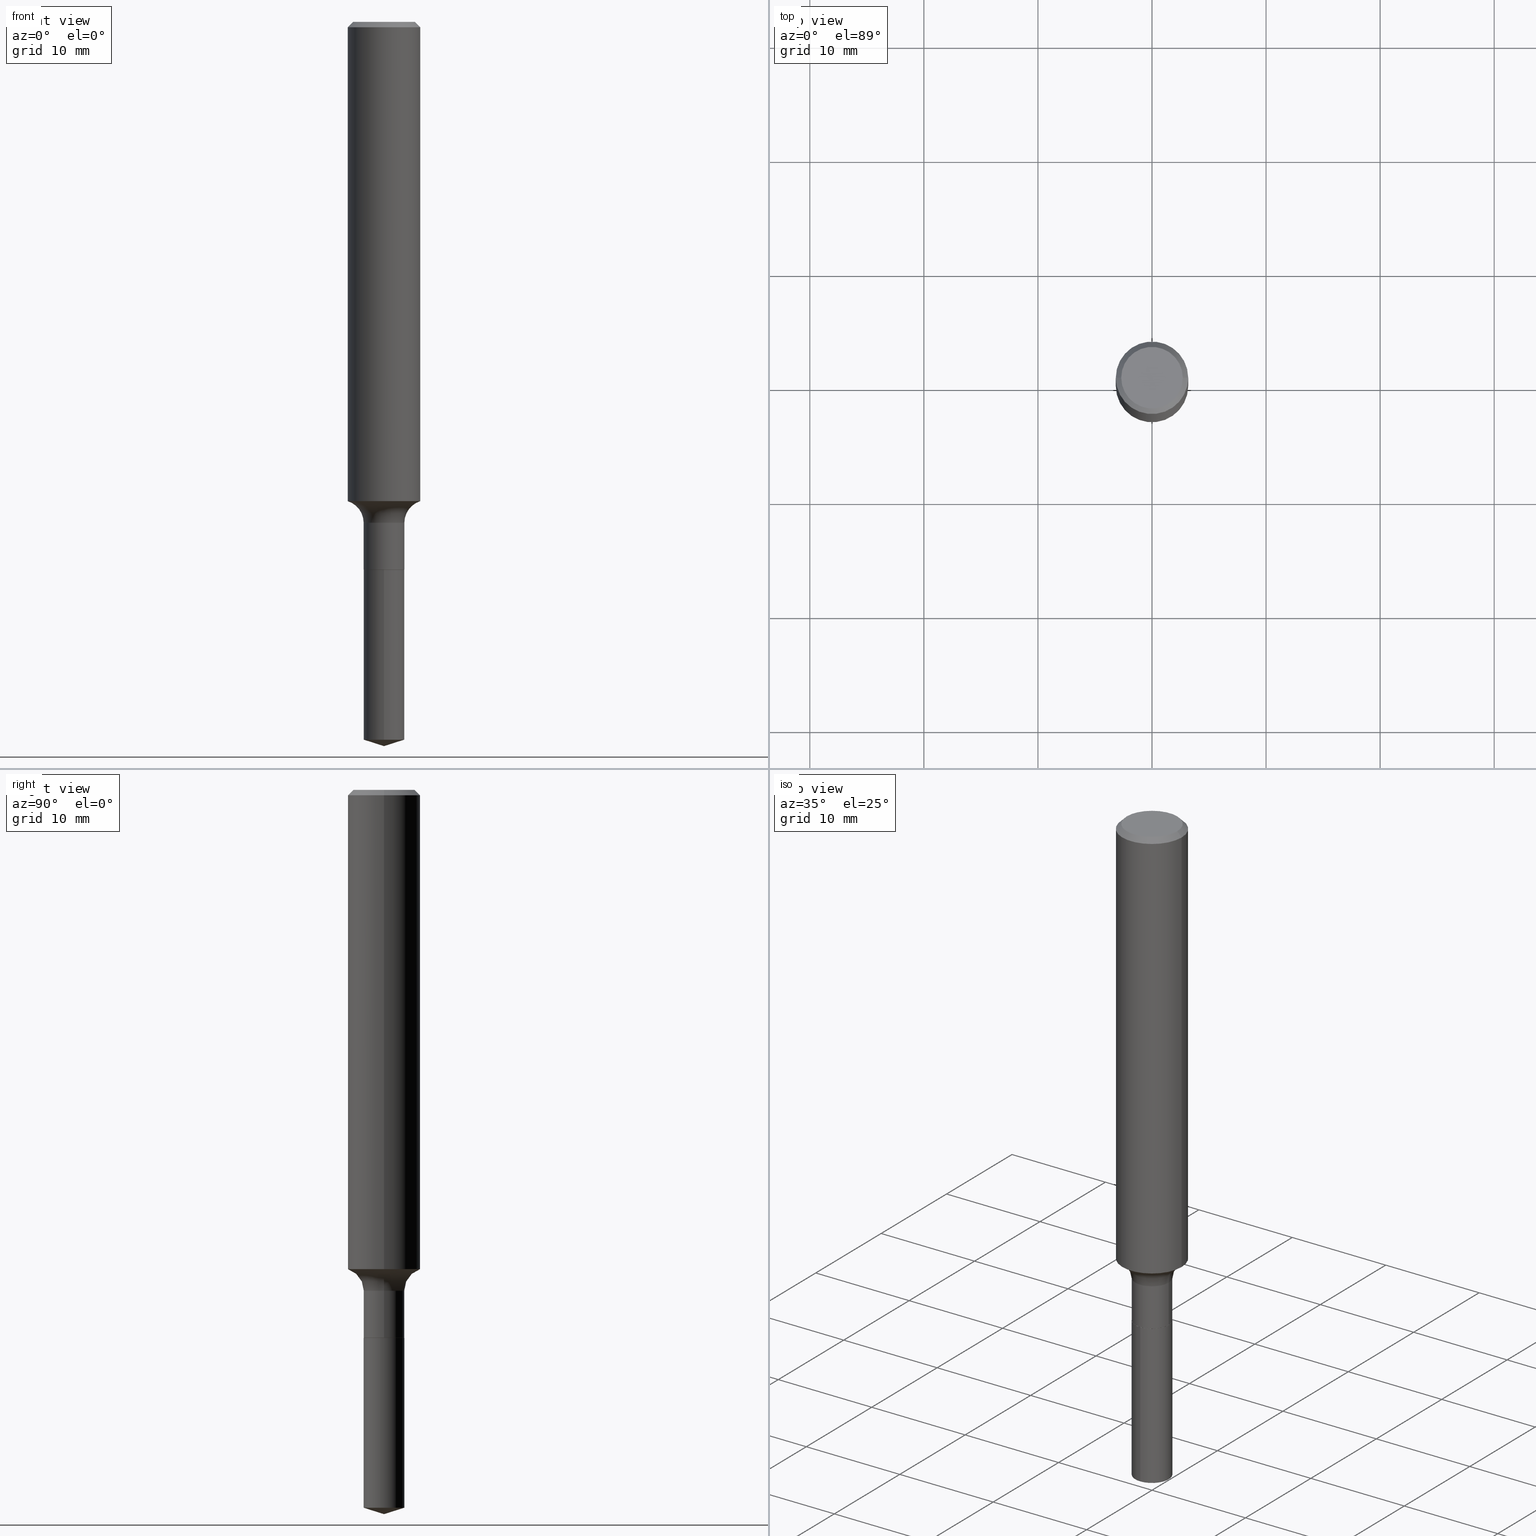
[diagram: canonical four-view strip — front | top / right | iso, engineering-drawing reading convention]
A machine part, canonical four-view strip (front | top / right | iso — engineering-drawing reading convention). The complete STEP part file that produces these views, byte-faithful:
ISO-10303-21;
HEADER;
FILE_DESCRIPTION (( 'STEP AP203' ),
    '1' );
FILE_NAME ('51332.STEP',
    '2024-04-19T12:48:15',
    ( '' ),
    ( '' ),
    'SwSTEP 2.0',
    'SolidWorks 2023',
    '' );
FILE_SCHEMA (( 'CONFIG_CONTROL_DESIGN' ));
ENDSEC;

DATA;
#1 = ORIENTED_EDGE ( 'NONE', *, *, #132, .T. ) ;
#2 = DIRECTION ( 'NONE',  ( 1.000000000000000000, -6.982962677686266711E-15, 4.876176775795935232E-29 ) ) ;
#3 = CARTESIAN_POINT ( 'NONE',  ( 4.623403324973620023E-29, -6.600994619216851985E-15, -1.890600000000000280 ) ) ;
#4 = VERTEX_POINT ( 'NONE', #352 ) ;
#5 = EDGE_CURVE ( 'NONE', #480, #422, #19, .T. ) ;
#6 = DIRECTION ( 'NONE',  ( -6.982962677686265133E-15, -1.000000000000000000, 3.885985766236505386E-15 ) ) ;
#7 = VERTEX_POINT ( 'NONE', #299 ) ;
#8 = CONICAL_SURFACE ( 'NONE', #289, 0.06980000000000000093, 0.7853981633975507526 ) ;
#9 = FACE_OUTER_BOUND ( 'NONE', #320, .T. ) ;
#10 = ORIENTED_EDGE ( 'NONE', *, *, #5, .F. ) ;
#11 = EDGE_CURVE ( 'NONE', #13, #136, #66, .T. ) ;
#12 = CARTESIAN_POINT ( 'NONE',  ( -0.07030000000000000138, -5.818323939397324002E-15, -1.890100000000000335 ) ) ;
#13 = VERTEX_POINT ( 'NONE', #65 ) ;
#14 = DIRECTION ( 'NONE',  ( -2.446110727934512128E-29, 3.490562070362123134E-15, 1.000000000000000000 ) ) ;
#15 = ORIENTED_EDGE ( 'NONE', *, *, #25, .F. ) ;
#16 = MANIFOLD_SOLID_BREP ( 'Body-Move/Copy2[2]', #391 ) ;
#17 = AXIS2_PLACEMENT_3D ( 'NONE', #288, #364, #491 ) ;
#18 = DIRECTION ( 'NONE',  ( 2.446110727934511567E-29, -3.490562070362123134E-15, -1.000000000000000000 ) ) ;
#19 = CIRCLE ( 'NONE', #17, 0.1062499999999999972 ) ;
#20 = VECTOR ( 'NONE', #186, 39.37007874015748143 ) ;
#21 = EDGE_LOOP ( 'NONE', ( #125, #430, #233, #15 ) ) ;
#22 = ORIENTED_EDGE ( 'NONE', *, *, #132, .F. ) ;
#23 = MANIFOLD_SOLID_BREP ( 'Body-Move/Copy2[1]', #205 ) ;
#24 = EDGE_CURVE ( 'NONE', #432, #396, #296, .T. ) ;
#25 = EDGE_CURVE ( 'NONE', #171, #136, #375, .T. ) ;
#26 = DATE_TIME_ROLE ( 'classification_date' ) ;
#27 = FACE_OUTER_BOUND ( 'NONE', #310, .T. ) ;
#28 = DATE_AND_TIME ( #181, #452 ) ;
#29 = CARTESIAN_POINT ( 'NONE',  ( 0.000000000000000000, 0.000000000000000000, 0.000000000000000000 ) ) ;
#30 = AXIS2_PLACEMENT_3D ( 'NONE', #178, #489, #147 ) ;
#31 = CC_DESIGN_SECURITY_CLASSIFICATION ( #338, ( #227 ) ) ;
#32 = CALENDAR_DATE ( 2024, 19, 4 ) ;
#33 = DIRECTION ( 'NONE',  ( -2.445468806185136877E-29, 3.491481338843145188E-15, 1.000000000000000000 ) ) ;
#34 = APPROVAL_ROLE ( '' ) ;
#35 = CARTESIAN_POINT ( 'NONE',  ( 4.623403324973620023E-29, -6.600994619216851985E-15, -1.890600000000000280 ) ) ;
#36 = CARTESIAN_POINT ( 'NONE',  ( -9.018950876334876814E-28, 1.286955604126683751E-13, 36.87007874015748143 ) ) ;
#37 = DIRECTION ( 'NONE',  ( 7.105427357601001859E-15, 1.000000000000000000, -3.491481338843145583E-15 ) ) ;
#38 = ORIENTED_EDGE ( 'NONE', *, *, #175, .T. ) ;
#39 = ADVANCED_FACE ( 'NONE', ( #293 ), #253, .T. ) ;
#40 = DIRECTION ( 'NONE',  ( 1.000000000000000000, -6.982962677686266711E-15, 0.000000000000000000 ) ) ;
#41 = CC_DESIGN_DATE_AND_TIME_ASSIGNMENT ( #179, #26, ( #338 ) ) ;
#42 = DIRECTION ( 'NONE',  ( -2.445468806185136597E-29, 3.491481338843145583E-15, 1.000000000000000000 ) ) ;
#43 = ORIENTED_EDGE ( 'NONE', *, *, #24, .F. ) ;
#44 = VECTOR ( 'NONE', #263, 39.37007874015748143 ) ;
#45 = CARTESIAN_POINT ( 'NONE',  ( 4.227971019013483248E-29, -6.036422086725915643E-15, -1.728900000000000325 ) ) ;
#46 = CARTESIAN_POINT ( 'NONE',  ( 0.1250000000000001110, -8.728703347107841277E-16, 6.095220969744924646E-30 ) ) ;
#47 = ORIENTED_EDGE ( 'NONE', *, *, #250, .T. ) ;
#48 = ORIENTED_EDGE ( 'NONE', *, *, #267, .F. ) ;
#49 = VECTOR ( 'NONE', #403, 39.37007874015748143 ) ;
#50 = VECTOR ( 'NONE', #208, 39.37007874015748143 ) ;
#51 = LINE ( 'NONE', #240, #50 ) ;
#52 = ORIENTED_EDGE ( 'NONE', *, *, #161, .T. ) ;
#53 = CARTESIAN_POINT ( 'NONE',  ( 4.227971019013483248E-29, -6.036422086725915643E-15, -1.728900000000000325 ) ) ;
#54 = VERTEX_POINT ( 'NONE', #366 ) ;
#55 = CARTESIAN_POINT ( 'NONE',  ( -7.955031918821649840E-47, 1.135767727816383790E-32, 3.252968060235157457E-18 ) ) ;
#56 = ORIENTED_EDGE ( 'NONE', *, *, #324, .T. ) ;
#57 = DIRECTION ( 'NONE',  ( 1.000000000000000000, -6.982962677686266711E-15, 0.000000000000000000 ) ) ;
#58 = AXIS2_PLACEMENT_3D ( 'NONE', #122, #129, #281 ) ;
#59 = EDGE_CURVE ( 'NONE', #7, #396, #333, .T. ) ;
#60 = ORIENTED_EDGE ( 'NONE', *, *, #117, .T. ) ;
#61 = ADVANCED_FACE ( 'NONE', ( #100 ), #407, .T. ) ;
#62 = APPLICATION_CONTEXT ( 'configuration controlled 3d designs of mechanical parts and assemblies' ) ;
#63 = APPROVAL_DATE_TIME ( #69, #127 ) ;
#64 = DIRECTION ( 'NONE',  ( -2.445468806185136597E-29, 3.491481338843145583E-15, 1.000000000000000000 ) ) ;
#65 = CARTESIAN_POINT ( 'NONE',  ( 0.07030000000000000138, -7.090151154788775429E-15, -1.890100000000000335 ) ) ;
#66 = LINE ( 'NONE', #335, #356 ) ;
#67 = CIRCLE ( 'NONE', #408, 0.07029999999999998750 ) ;
#68 = AXIS2_PLACEMENT_3D ( 'NONE', #53, #467, #311 ) ;
#69 = DATE_AND_TIME ( #441, #275 ) ;
#70 = DIRECTION ( 'NONE',  ( 6.776566513254265237E-15, 0.9537169507482298192, 0.3007057995042637932 ) ) ;
#71 =( NAMED_UNIT ( * ) PLANE_ANGLE_UNIT ( ) SI_UNIT ( $, .RADIAN. ) );
#72 = CARTESIAN_POINT ( 'NONE',  ( -0.06980000000000000093, -6.105035789656301457E-15, -1.890600000000000280 ) ) ;
#73 = DIRECTION ( 'NONE',  ( -2.445468806185136597E-29, 3.491481338843145583E-15, 1.000000000000000000 ) ) ;
#74 = EDGE_LOOP ( 'NONE', ( #308, #60, #134, #435 ) ) ;
#75 = AXIS2_PLACEMENT_3D ( 'NONE', #212, #106, #330 ) ;
#76 = CYLINDRICAL_SURFACE ( 'NONE', #457, 0.1250000000000001110 ) ;
#77 = LINE ( 'NONE', #78, #44 ) ;
#78 = CARTESIAN_POINT ( 'NONE',  ( 4.995115432393965888E-16, 0.07029999999999339555, -1.890600000000000502 ) ) ;
#79 = AXIS2_PLACEMENT_3D ( 'NONE', #343, #302, #114 ) ;
#80 = EDGE_CURVE ( 'NONE', #13, #315, #392, .T. ) ;
#81 = FACE_OUTER_BOUND ( 'NONE', #130, .T. ) ;
#82 = FACE_OUTER_BOUND ( 'NONE', #190, .T. ) ;
#83 = ORIENTED_EDGE ( 'NONE', *, *, #324, .F. ) ;
#84 = DIRECTION ( 'NONE',  ( -2.445468806185136597E-29, 3.491481338843145583E-15, 1.000000000000000000 ) ) ;
#85 = ORIENTED_EDGE ( 'NONE', *, *, #429, .T. ) ;
#86 = EDGE_CURVE ( 'NONE', #90, #95, #98, .T. ) ;
#87 = TOROIDAL_SURFACE ( 'NONE', #434, 0.1482999999999999596, 0.07800000000000002764 ) ;
#88 = CIRCLE ( 'NONE', #220, 0.07030000000000000138 ) ;
#89 = DIRECTION ( 'NONE',  ( -6.982962677686267499E-15, -1.000000000000000000, 3.500519750498661045E-15 ) ) ;
#90 = VERTEX_POINT ( 'NONE', #449 ) ;
#91 = LINE ( 'NONE', #164, #305 ) ;
#92 = ORIENTED_EDGE ( 'NONE', *, *, #295, .F. ) ;
#93 = EDGE_CURVE ( 'NONE', #54, #170, #225, .T. ) ;
#94 = CARTESIAN_POINT ( 'NONE',  ( 4.585254011597163874E-31, -6.546527510330944066E-17, -0.01875000000000013461 ) ) ;
#95 = VERTEX_POINT ( 'NONE', #413 ) ;
#96 = PERSON_AND_ORGANIZATION ( #237, #394 ) ;
#97 = AXIS2_PLACEMENT_3D ( 'NONE', #318, #84, #428 ) ;
#98 = LINE ( 'NONE', #372, #298 ) ;
#99 = DATE_TIME_ROLE ( 'creation_date' ) ;
#100 = FACE_OUTER_BOUND ( 'NONE', #323, .T. ) ;
#101 = PRODUCT ( '51332', '51332', '', ( #290 ) ) ;
#102 = CALENDAR_DATE ( 2024, 19, 4 ) ;
#103 = DIMENSIONAL_EXPONENTS ( 1.000000000000000000, 0.000000000000000000, 0.000000000000000000, 0.000000000000000000, 0.000000000000000000, 0.000000000000000000, 0.000000000000000000 ) ;
#104 = DIRECTION ( 'NONE',  ( -2.445468806185136597E-29, 3.491481338843145583E-15, 1.000000000000000000 ) ) ;
#105 = APPROVAL_STATUS ( 'not_yet_approved' ) ;
#106 = DIRECTION ( 'NONE',  ( -2.445468806185136597E-29, 3.491481338843145583E-15, 1.000000000000000000 ) ) ;
#107 = CONICAL_SURFACE ( 'NONE', #450, 0.1250000000000000000, 0.7853981633974447263 ) ;
#108 = APPROVAL_DATE_TIME ( #28, #409 ) ;
#109 = LINE ( 'NONE', #72, #49 ) ;
#110 = EDGE_CURVE ( 'NONE', #4, #194, #206, .T. ) ;
#111 = FACE_OUTER_BOUND ( 'NONE', #419, .T. ) ;
#112 = DIRECTION ( 'NONE',  ( 1.000000000000000000, -6.982962677686271444E-15, 0.000000000000000000 ) ) ;
#113 = CIRCLE ( 'NONE', #79, 0.07030000000000000138 ) ;
#114 = DIRECTION ( 'NONE',  ( -6.982962677686265133E-15, -1.000000000000000000, 0.000000000000000000 ) ) ;
#115 = DIRECTION ( 'NONE',  ( 1.000000000000000000, -6.982962677686265133E-15, 4.883557194083112340E-29 ) ) ;
#116 = ORIENTED_EDGE ( 'NONE', *, *, #24, .T. ) ;
#117 = EDGE_CURVE ( 'NONE', #194, #315, #109, .T. ) ;
#118 = EDGE_CURVE ( 'NONE', #171, #427, #191, .T. ) ;
#119 = DIRECTION ( 'NONE',  ( -2.445468806185136597E-29, 3.491481338843145583E-15, 1.000000000000000000 ) ) ;
#120 = VECTOR ( 'NONE', #158, 39.37007874015748143 ) ;
#121 = LOCAL_TIME ( 8, 48, 15.00000000000000000, #412 ) ;
#122 = CARTESIAN_POINT ( 'NONE',  ( 4.623403324973620023E-29, -6.600994619216851985E-15, -1.890600000000000280 ) ) ;
#123 =( LENGTH_UNIT ( ) NAMED_UNIT ( * ) SI_UNIT ( $, .METRE. ) );
#124 = ADVANCED_FACE ( 'NONE', ( #142 ), #321, .T. ) ;
#125 = ORIENTED_EDGE ( 'NONE', *, *, #357, .F. ) ;
#126 = CARTESIAN_POINT ( 'NONE',  ( 4.623403324973620023E-29, -6.600994619216851985E-15, -1.890600000000000280 ) ) ;
#127 = APPROVAL ( #145, 'UNSPECIFIED' ) ;
#128 = ORIENTED_EDGE ( 'NONE', *, *, #174, .T. ) ;
#129 = DIRECTION ( 'NONE',  ( -2.438088387897960049E-29, 3.491481338843145188E-15, 1.000000000000000000 ) ) ;
#130 = EDGE_LOOP ( 'NONE', ( #83, #440, #437, #239 ) ) ;
#131 = ADVANCED_FACE ( 'NONE', ( #27 ), #173, .T. ) ;
#132 = EDGE_CURVE ( 'NONE', #315, #13, #234, .T. ) ;
#133 = CARTESIAN_POINT ( 'NONE',  ( 4.995115432394111827E-16, 0.07029999999999340943, -1.890600000000000502 ) ) ;
#134 = ORIENTED_EDGE ( 'NONE', *, *, #80, .F. ) ;
#135 = COORDINATED_UNIVERSAL_TIME_OFFSET ( 5, 0, .BEHIND. ) ;
#136 = VERTEX_POINT ( 'NONE', #221 ) ;
#137 = PERSON_AND_ORGANIZATION_ROLE ( 'creator' ) ;
#138 = VECTOR ( 'NONE', #418, 39.37007874015748143 ) ;
#139 = CIRCLE ( 'NONE', #97, 0.1250000000000001943 ) ;
#140 = DIRECTION ( 'NONE',  ( -2.445468806185136597E-29, 3.491481338843145583E-15, 1.000000000000000000 ) ) ;
#141 = CARTESIAN_POINT ( 'NONE',  ( 0.000000000000000000, 0.000000000000000000, 0.000000000000000000 ) ) ;
#142 = FACE_OUTER_BOUND ( 'NONE', #248, .T. ) ;
#143 = DIRECTION ( 'NONE',  ( -2.445468806185136597E-29, 3.491481338843145583E-15, 1.000000000000000000 ) ) ;
#144 = PRODUCT_RELATED_PRODUCT_CATEGORY ( 'detail', '', ( #101 ) ) ;
#145 = APPROVAL_STATUS ( 'not_yet_approved' ) ;
#146 = CONICAL_SURFACE ( 'NONE', #312, 0.1250000000000000000, 0.7853981633974447263 ) ;
#147 = DIRECTION ( 'NONE',  ( 1.000000000000000000, -6.982962677686266711E-15, 4.876176775795935793E-29 ) ) ;
#148 = CONICAL_SURFACE ( 'NONE', #185, 124.8659371009166108, 1.265363707695895235 ) ;
#149 = EDGE_CURVE ( 'NONE', #427, #54, #370, .T. ) ;
#150 = CARTESIAN_POINT ( 'NONE',  ( 4.585254011597163874E-31, -6.546527510330944066E-17, -0.01875000000000013461 ) ) ;
#151 = CARTESIAN_POINT ( 'NONE',  ( 0.06980000000000000093, -7.088405414119353136E-15, -1.890600000000000280 ) ) ;
#152 = ORIENTED_EDGE ( 'NONE', *, *, #86, .T. ) ;
#153 = DIRECTION ( 'NONE',  ( -2.445468806185136597E-29, 3.491481338843145583E-15, 1.000000000000000000 ) ) ;
#154 = ORIENTED_EDGE ( 'NONE', *, *, #295, .T. ) ;
#155 = VECTOR ( 'NONE', #33, 39.37007874015748143 ) ;
#156 = FACE_OUTER_BOUND ( 'NONE', #243, .T. ) ;
#157 = ORIENTED_EDGE ( 'NONE', *, *, #59, .F. ) ;
#158 = DIRECTION ( 'NONE',  ( -2.445468806185136877E-29, 3.491481338843145188E-15, 1.000000000000000000 ) ) ;
#159 = FACE_OUTER_BOUND ( 'NONE', #284, .T. ) ;
#160 = CC_DESIGN_APPROVAL ( #209, ( #338 ) ) ;
#161 = EDGE_CURVE ( 'NONE', #4, #13, #304, .T. ) ;
#162 = ADVANCED_FACE ( 'NONE', ( #192 ), #484, .T. ) ;
#163 = ORIENTED_EDGE ( 'NONE', *, *, #373, .T. ) ;
#164 = CARTESIAN_POINT ( 'NONE',  ( 0.1250000000000000000, -9.230275248247509846E-16, -0.01875000000000013461 ) ) ;
#165 = ORIENTED_EDGE ( 'NONE', *, *, #357, .T. ) ;
#166 = PLANE ( 'NONE',  #168 ) ;
#167 = ORIENTED_EDGE ( 'NONE', *, *, #183, .F. ) ;
#168 = AXIS2_PLACEMENT_3D ( 'NONE', #283, #18, #351 ) ;
#169 = DIRECTION ( 'NONE',  ( -2.445468806185136597E-29, 3.491481338843145583E-15, 1.000000000000000000 ) ) ;
#170 = VERTEX_POINT ( 'NONE', #266 ) ;
#171 = VERTEX_POINT ( 'NONE', #272 ) ;
#172 = PERSON_AND_ORGANIZATION ( #237, #394 ) ;
#173 = CYLINDRICAL_SURFACE ( 'NONE', #265, 0.1250000000000001110 ) ;
#174 = EDGE_CURVE ( 'NONE', #7, #95, #113, .T. ) ;
#175 = EDGE_CURVE ( 'NONE', #194, #4, #348, .T. ) ;
#176 = AXIS2_PLACEMENT_3D ( 'NONE', #189, #270, #112 ) ;
#177 =( GEOMETRIC_REPRESENTATION_CONTEXT ( 3 ) GLOBAL_UNCERTAINTY_ASSIGNED_CONTEXT ( ( #217 ) ) GLOBAL_UNIT_ASSIGNED_CONTEXT ( ( #431, #71, #214 ) ) REPRESENTATION_CONTEXT ( 'NONE', 'WORKASPACE' ) );
#178 = CARTESIAN_POINT ( 'NONE',  ( 0.000000000000000000, 0.000000000000000000, 0.000000000000000000 ) ) ;
#179 = DATE_AND_TIME ( #32, #121 ) ;
#180 = CARTESIAN_POINT ( 'NONE',  ( 4.622180590570527221E-29, -6.599248878547431270E-15, -1.890100000000000335 ) ) ;
#181 = CALENDAR_DATE ( 2024, 19, 4 ) ;
#182 = DIRECTION ( 'NONE',  ( 1.000000000000000000, -6.982962677686271444E-15, 0.000000000000000000 ) ) ;
#183 = EDGE_CURVE ( 'NONE', #422, #54, #455, .T. ) ;
#184 = DIRECTION ( 'NONE',  ( -6.982962677686267499E-15, -1.000000000000000000, 3.500519750498661045E-15 ) ) ;
#185 = AXIS2_PLACEMENT_3D ( 'NONE', #397, #355, #89 ) ;
#186 = DIRECTION ( 'NONE',  ( 0.7071067811866199593, -2.468850131083015945E-15, 0.7071067811864750752 ) ) ;
#187 = ORIENTED_EDGE ( 'NONE', *, *, #460, .F. ) ;
#188 = ADVANCED_FACE ( 'NONE', ( #387 ), #76, .T. ) ;
#189 = CARTESIAN_POINT ( 'NONE',  ( 4.623403324973620023E-29, -6.600994619216851985E-15, -1.890600000000000280 ) ) ;
#190 = EDGE_LOOP ( 'NONE', ( #317, #456 ) ) ;
#191 = CIRCLE ( 'NONE', #328, 0.1250000000000001943 ) ;
#192 = FACE_OUTER_BOUND ( 'NONE', #74, .T. ) ;
#193 = FACE_OUTER_BOUND ( 'NONE', #325, .T. ) ;
#194 = VERTEX_POINT ( 'NONE', #229 ) ;
#195 = ADVANCED_FACE ( 'NONE', ( #156 ), #87, .F. ) ;
#196 = ADVANCED_FACE ( 'NONE', ( #421 ), #416, .F. ) ;
#197 = ORIENTED_EDGE ( 'NONE', *, *, #236, .F. ) ;
#198 = AXIS2_PLACEMENT_3D ( 'NONE', #279, #472, #6 ) ;
#199 = DIRECTION ( 'NONE',  ( 2.438088387897960049E-29, -3.491481338843145188E-15, -1.000000000000000000 ) ) ;
#200 = ORIENTED_EDGE ( 'NONE', *, *, #25, .T. ) ;
#201 = CARTESIAN_POINT ( 'NONE',  ( -4.909022762412983059E-16, -0.07030000000000659333, -1.890600000000000058 ) ) ;
#202 = ORIENTED_EDGE ( 'NONE', *, *, #250, .F. ) ;
#203 = CARTESIAN_POINT ( 'NONE',  ( 0.1062499999999999972, -8.259777185439879685E-16, 6.505936120475796882E-18 ) ) ;
#204 = ORIENTED_EDGE ( 'NONE', *, *, #117, .F. ) ;
#205 = CLOSED_SHELL ( 'NONE', ( #244, #124, #374, #381, #301 ) ) ;
#206 = CIRCLE ( 'NONE', #367, 0.06980000000000000093 ) ;
#207 = AXIS2_PLACEMENT_3D ( 'NONE', #141, #292, #448 ) ;
#208 = DIRECTION ( 'NONE',  ( -2.445468806185136877E-29, 3.491481338843145188E-15, 1.000000000000000000 ) ) ;
#209 = APPROVAL ( #329, 'UNSPECIFIED' ) ;
#210 = ORIENTED_EDGE ( 'NONE', *, *, #11, .F. ) ;
#211 = SECURITY_CLASSIFICATION_LEVEL ( 'unclassified' ) ;
#212 = CARTESIAN_POINT ( 'NONE',  ( 4.585254011597163874E-31, -6.546527510330944066E-17, -0.01875000000000013461 ) ) ;
#213 = EDGE_CURVE ( 'NONE', #95, #432, #77, .T. ) ;
#214 =( NAMED_UNIT ( * ) SI_UNIT ( $, .STERADIAN. ) SOLID_ANGLE_UNIT ( ) );
#215 = DIRECTION ( 'NONE',  ( 1.000000000000000000, -6.982962677686268288E-15, 0.000000000000000000 ) ) ;
#216 = CC_DESIGN_DATE_AND_TIME_ASSIGNMENT ( #252, #99, ( #336 ) ) ;
#217 = UNCERTAINTY_MEASURE_WITH_UNIT (LENGTH_MEASURE( 1.000000000000000082E-05 ), #431, 'distance_accuracy_value', 'NONE');
#218 = APPROVAL_ROLE ( '' ) ;
#219 = AXIS2_PLACEMENT_3D ( 'NONE', #378, #119, #492 ) ;
#220 = AXIS2_PLACEMENT_3D ( 'NONE', #322, #14, #433 ) ;
#221 = CARTESIAN_POINT ( 'NONE',  ( 0.07029999999999998750, -6.527324362967259801E-15, -1.728900000000000325 ) ) ;
#222 = PERSON_AND_ORGANIZATION ( #237, #394 ) ;
#223 = CARTESIAN_POINT ( 'NONE',  ( -0.1250000000000001110, 8.881784197001260212E-16, -6.148668862818637832E-30 ) ) ;
#224 = CARTESIAN_POINT ( 'NONE',  ( 4.045933665398783459E-29, -5.776520990661802291E-15, -1.654461367556892881 ) ) ;
#225 = CIRCLE ( 'NONE', #75, 0.1250000000000000000 ) ;
#226 = DIRECTION ( 'NONE',  ( -6.982962677686265133E-15, -1.000000000000000000, 3.885985766236505386E-15 ) ) ;
#227 = PRODUCT_DEFINITION_FORMATION_WITH_SPECIFIED_SOURCE ( 'ANY', '', #101, .NOT_KNOWN. ) ;
#228 = ORIENTED_EDGE ( 'NONE', *, *, #175, .F. ) ;
#229 = CARTESIAN_POINT ( 'NONE',  ( -0.06980000000000000093, -6.102386562482190256E-15, -1.890600000000000280 ) ) ;
#230 = EDGE_CURVE ( 'NONE', #422, #480, #376, .T. ) ;
#231 = CARTESIAN_POINT ( 'NONE',  ( 0.000000000000000000, 0.000000000000000000, 0.000000000000000000 ) ) ;
#232 = CARTESIAN_POINT ( 'NONE',  ( 4.227971019013483248E-29, -6.036422086725915643E-15, -1.728900000000000325 ) ) ;
#233 = ORIENTED_EDGE ( 'NONE', *, *, #236, .T. ) ;
#234 = CIRCLE ( 'NONE', #382, 0.07030000000000000138 ) ;
#235 = CARTESIAN_POINT ( 'NONE',  ( -0.07029999999999998750, -5.818323939397324002E-15, -1.728900000000000325 ) ) ;
#236 = EDGE_CURVE ( 'NONE', #280, #136, #67, .T. ) ;
#237 = PERSON ( 'UNSPECIFIED', 'UNSPECIFIED', 'UNSPECIFIED', ('UNSPECIFIED'), ('UNSPECIFIED'), ('UNSPECIFIED') ) ;
#238 = PLANE ( 'NONE',  #424 ) ;
#239 = ORIENTED_EDGE ( 'NONE', *, *, #93, .T. ) ;
#240 = CARTESIAN_POINT ( 'NONE',  ( -0.07029999999999998750, 4.995115432393503418E-16, -3.458011368449198169E-30 ) ) ;
#241 = ORIENTED_EDGE ( 'NONE', *, *, #86, .F. ) ;
#242 = DIRECTION ( 'NONE',  ( -2.446110727934512128E-29, 3.490562070362123134E-15, 1.000000000000000000 ) ) ;
#243 = EDGE_LOOP ( 'NONE', ( #48, #246, #200, #85 ) ) ;
#244 = ADVANCED_FACE ( 'NONE', ( #344 ), #414, .T. ) ;
#245 = DIRECTION ( 'NONE',  ( -6.659769872151639188E-15, -0.9537169507482275987, 0.3007057995042703991 ) ) ;
#246 = ORIENTED_EDGE ( 'NONE', *, *, #118, .F. ) ;
#247 = CYLINDRICAL_SURFACE ( 'NONE', #475, 0.07030000000000000138 ) ;
#248 = EDGE_LOOP ( 'NONE', ( #471, #152, #474 ) ) ;
#249 = PERSON_AND_ORGANIZATION ( #237, #394 ) ;
#250 = EDGE_CURVE ( 'NONE', #171, #170, #269, .T. ) ;
#251 = DIRECTION ( 'NONE',  ( 1.000000000000000000, -6.982962677686266711E-15, 4.876176775795935793E-29 ) ) ;
#252 = DATE_AND_TIME ( #334, #417 ) ;
#253 = CYLINDRICAL_SURFACE ( 'NONE', #30, 0.07029999999999998750 ) ;
#254 = CC_DESIGN_PERSON_AND_ORGANIZATION_ASSIGNMENT ( #479, #137, ( #336 ) ) ;
#255 = DATE_AND_TIME ( #102, #368 ) ;
#256 = DIRECTION ( 'NONE',  ( -2.445468806185136877E-29, 3.491481338843145188E-15, 1.000000000000000000 ) ) ;
#257 = APPROVAL_ROLE ( '' ) ;
#258 = AXIS2_PLACEMENT_3D ( 'NONE', #232, #383, #454 ) ;
#259 = CC_DESIGN_APPROVAL ( #409, ( #336 ) ) ;
#260 = DIRECTION ( 'NONE',  ( 1.000000000000000000, -6.982962677686267499E-15, 0.000000000000000000 ) ) ;
#261 = PERSON_AND_ORGANIZATION_ROLE ( 'classification_officer' ) ;
#262 = DIRECTION ( 'NONE',  ( -2.446110727934511847E-29, 3.490562070362123134E-15, 1.000000000000000000 ) ) ;
#263 = DIRECTION ( 'NONE',  ( -2.446110727934511847E-29, 3.490562070362123134E-15, 1.000000000000000000 ) ) ;
#264 = AXIS2_PLACEMENT_3D ( 'NONE', #445, #442, #371 ) ;
#265 = AXIS2_PLACEMENT_3D ( 'NONE', #483, #140, #339 ) ;
#266 = CARTESIAN_POINT ( 'NONE',  ( 0.1250000000000000000, -9.383356098140928781E-16, -0.01875000000000013461 ) ) ;
#267 = EDGE_CURVE ( 'NONE', #427, #280, #342, .T. ) ;
#268 = EDGE_LOOP ( 'NONE', ( #464, #228 ) ) ;
#269 = LINE ( 'NONE', #46, #120 ) ;
#270 = DIRECTION ( 'NONE',  ( -2.445468806185136597E-29, 3.491481338843145583E-15, 1.000000000000000000 ) ) ;
#271 = ADVANCED_FACE ( 'NONE', ( #81 ), #107, .T. ) ;
#272 = CARTESIAN_POINT ( 'NONE',  ( 0.1250000000000003053, -6.649391325372587997E-15, -1.654461367556892881 ) ) ;
#273 = AXIS2_PLACEMENT_3D ( 'NONE', #453, #405, #215 ) ;
#274 = ORIENTED_EDGE ( 'NONE', *, *, #80, .T. ) ;
#275 = LOCAL_TIME ( 8, 48, 15.00000000000000000, #287 ) ;
#276 = CARTESIAN_POINT ( 'NONE',  ( 6.112849585317541529E-29, -8.729881113885750899E-15, -2.500000000000000000 ) ) ;
#277 = DIRECTION ( 'NONE',  ( -6.982962677686265133E-15, -1.000000000000000000, 3.885985766236505386E-15 ) ) ;
#278 = ORIENTED_EDGE ( 'NONE', *, *, #11, .T. ) ;
#279 = CARTESIAN_POINT ( 'NONE',  ( 4.623403324973620023E-29, -6.600994619216851985E-15, -1.890600000000000280 ) ) ;
#280 = VERTEX_POINT ( 'NONE', #235 ) ;
#281 = DIRECTION ( 'NONE',  ( 1.000000000000000000, -6.982962677686265922E-15, 4.876176775795935793E-29 ) ) ;
#282 = ORIENTED_EDGE ( 'NONE', *, *, #118, .T. ) ;
#283 = CARTESIAN_POINT ( 'NONE',  ( 4.623403324973620023E-29, -6.600994619216851985E-15, -1.890600000000000280 ) ) ;
#284 = EDGE_LOOP ( 'NONE', ( #241, #385, #478 ) ) ;
#285 = ADVANCED_FACE ( 'NONE', ( #193 ), #146, .T. ) ;
#286 = ADVANCED_FACE ( 'NONE', ( #111 ), #8, .T. ) ;
#287 = COORDINATED_UNIVERSAL_TIME_OFFSET ( 5, 0, .BEHIND. ) ;
#288 = CARTESIAN_POINT ( 'NONE',  ( -1.591006383764329968E-46, 2.271535455632767580E-32, 6.505936120470314915E-18 ) ) ;
#289 = AXIS2_PLACEMENT_3D ( 'NONE', #126, #169, #436 ) ;
#290 = MECHANICAL_CONTEXT ( 'NONE', #438, 'mechanical' ) ;
#291 = CARTESIAN_POINT ( 'NONE',  ( 4.622180590570527221E-29, -6.599248878547431270E-15, -1.890100000000000335 ) ) ;
#292 = DIRECTION ( 'NONE',  ( 0.000000000000000000, 0.000000000000000000, 1.000000000000000000 ) ) ;
#293 = FACE_OUTER_BOUND ( 'NONE', #462, .T. ) ;
#294 = DIRECTION ( 'NONE',  ( -2.445468806185136597E-29, 3.491481338843145583E-15, 1.000000000000000000 ) ) ;
#295 = EDGE_CURVE ( 'NONE', #396, #432, #443, .T. ) ;
#296 = CIRCLE ( 'NONE', #264, 0.07030000000000000138 ) ;
#297 = PERSON_AND_ORGANIZATION_ROLE ( 'design_supplier' ) ;
#298 = VECTOR ( 'NONE', #70, 39.37007874015748854 ) ;
#299 = CARTESIAN_POINT ( 'NONE',  ( -4.909022762412840078E-16, -0.07030000000000866112, -2.477834495141808091 ) ) ;
#300 = DIRECTION ( 'NONE',  ( -1.000000000000000000, 6.982962677686266711E-15, 0.000000000000000000 ) ) ;
#301 = ADVANCED_FACE ( 'NONE', ( #9 ), #166, .F. ) ;
#302 = DIRECTION ( 'NONE',  ( -2.446110727934512128E-29, 3.490562070362123134E-15, 1.000000000000000000 ) ) ;
#303 = AXIS2_PLACEMENT_3D ( 'NONE', #180, #143, #488 ) ;
#304 = LINE ( 'NONE', #151, #20 ) ;
#305 = VECTOR ( 'NONE', #470, 39.37007874015748143 ) ;
#306 = ORIENTED_EDGE ( 'NONE', *, *, #429, .F. ) ;
#307 = CARTESIAN_POINT ( 'NONE',  ( 4.227971019013483248E-29, -6.036422086725915643E-15, -1.728900000000000325 ) ) ;
#308 = ORIENTED_EDGE ( 'NONE', *, *, #110, .T. ) ;
#309 = DIRECTION ( 'NONE',  ( -1.000000000000000000, 7.105427357601008170E-15, 0.000000000000000000 ) ) ;
#310 = EDGE_LOOP ( 'NONE', ( #345, #165, #47, #400 ) ) ;
#311 = DIRECTION ( 'NONE',  ( 1.000000000000000000, -6.982962677686266711E-15, 0.000000000000000000 ) ) ;
#312 = AXIS2_PLACEMENT_3D ( 'NONE', #150, #377, #300 ) ;
#313 = APPROVAL_PERSON_ORGANIZATION ( #222, #127, #218 ) ;
#314 = FACE_OUTER_BOUND ( 'NONE', #362, .T. ) ;
#315 = VERTEX_POINT ( 'NONE', #12 ) ;
#316 = LINE ( 'NONE', #276, #426 ) ;
#317 = ORIENTED_EDGE ( 'NONE', *, *, #230, .T. ) ;
#318 = CARTESIAN_POINT ( 'NONE',  ( 4.045933665398783459E-29, -5.776520990661802291E-15, -1.654461367556892881 ) ) ;
#319 = CC_DESIGN_PERSON_AND_ORGANIZATION_ASSIGNMENT ( #96, #369, ( #227 ) ) ;
#320 = EDGE_LOOP ( 'NONE', ( #154, #116 ) ) ;
#321 = CONICAL_SURFACE ( 'NONE', #490, 124.8659371009166108, 1.265363707695895235 ) ;
#322 = CARTESIAN_POINT ( 'NONE',  ( 6.059843923353203436E-29, -8.650773074367097084E-15, -2.477834495141808091 ) ) ;
#323 = EDGE_LOOP ( 'NONE', ( #274, #380, #306, #210 ) ) ;
#324 = EDGE_CURVE ( 'NONE', #480, #170, #91, .T. ) ;
#325 = EDGE_LOOP ( 'NONE', ( #10, #56, #398, #167 ) ) ;
#326 = PERSON_AND_ORGANIZATION ( #237, #394 ) ;
#327 = CARTESIAN_POINT ( 'NONE',  ( -4.909022762412983059E-16, -0.07030000000000659333, -1.890600000000000058 ) ) ;
#328 = AXIS2_PLACEMENT_3D ( 'NONE', #224, #64, #260 ) ;
#329 = APPROVAL_STATUS ( 'not_yet_approved' ) ;
#330 = DIRECTION ( 'NONE',  ( 1.000000000000000000, -6.982962677686266711E-15, 0.000000000000000000 ) ) ;
#331 = DESIGN_CONTEXT ( 'detailed design', #62, 'design' ) ;
#332 = APPROVAL_DATE_TIME ( #255, #209 ) ;
#333 = LINE ( 'NONE', #327, #401 ) ;
#334 = CALENDAR_DATE ( 2024, 19, 4 ) ;
#335 = CARTESIAN_POINT ( 'NONE',  ( 0.07029999999999998750, -4.909022762413444543E-16, 3.427952273384542436E-30 ) ) ;
#336 = PRODUCT_DEFINITION ( 'UNKNOWN', '', #227, #331 ) ;
#337 = AXIS2_PLACEMENT_3D ( 'NONE', #379, #153, #340 ) ;
#338 = SECURITY_CLASSIFICATION ( '', '', #211 ) ;
#339 = DIRECTION ( 'NONE',  ( 1.000000000000000000, -6.982962677686266711E-15, 4.876176775795935232E-29 ) ) ;
#340 = DIRECTION ( 'NONE',  ( 1.000000000000000000, -6.982962677686271444E-15, 0.000000000000000000 ) ) ;
#341 = CARTESIAN_POINT ( 'NONE',  ( -0.1250000000000000000, 8.074050596074738982E-16, -0.01875000000000013461 ) ) ;
#342 = CIRCLE ( 'NONE', #473, 0.07800000000000002764 ) ;
#343 = CARTESIAN_POINT ( 'NONE',  ( 6.059843923353203436E-29, -8.650773074367097084E-15, -2.477834495141808091 ) ) ;
#344 = FACE_OUTER_BOUND ( 'NONE', #349, .T. ) ;
#345 = ORIENTED_EDGE ( 'NONE', *, *, #149, .F. ) ;
#346 = DIRECTION ( 'NONE',  ( 2.445468806185136597E-29, -3.491481338843145583E-15, -1.000000000000000000 ) ) ;
#347 = ORIENTED_EDGE ( 'NONE', *, *, #213, .T. ) ;
#348 = CIRCLE ( 'NONE', #337, 0.06980000000000000093 ) ;
#349 = EDGE_LOOP ( 'NONE', ( #128, #347, #92, #157 ) ) ;
#350 = CIRCLE ( 'NONE', #444, 0.1250000000000000000 ) ;
#351 = DIRECTION ( 'NONE',  ( 6.982962677686265922E-15, 1.000000000000000000, -3.490562070362123134E-15 ) ) ;
#352 = CARTESIAN_POINT ( 'NONE',  ( 0.06980000000000000093, -7.088405414119353136E-15, -1.890600000000000280 ) ) ;
#353 = PLANE ( 'NONE',  #58 ) ;
#354 = ORIENTED_EDGE ( 'NONE', *, *, #213, .F. ) ;
#355 = DIRECTION ( 'NONE',  ( -2.446110727934512128E-29, 3.490562070362123134E-15, 1.000000000000000000 ) ) ;
#356 = VECTOR ( 'NONE', #256, 39.37007874015748143 ) ;
#357 = EDGE_CURVE ( 'NONE', #427, #171, #139, .T. ) ;
#358 = ORIENTED_EDGE ( 'NONE', *, *, #149, .T. ) ;
#359 = AXIS2_PLACEMENT_3D ( 'NONE', #3, #459, #226 ) ;
#360 = AXIS2_PLACEMENT_3D ( 'NONE', #29, #294, #251 ) ;
#361 = CC_DESIGN_APPROVAL ( #127, ( #227 ) ) ;
#362 = EDGE_LOOP ( 'NONE', ( #354, #163, #389, #43 ) ) ;
#363 = PERSON_AND_ORGANIZATION ( #237, #394 ) ;
#364 = DIRECTION ( 'NONE',  ( -2.445468806185136597E-29, 3.491481338843145583E-15, 1.000000000000000000 ) ) ;
#365 = PERSON_AND_ORGANIZATION ( #237, #394 ) ;
#366 = CARTESIAN_POINT ( 'NONE',  ( -0.1250000000000000000, -2.032814713182428908E-15, -0.01875000000000013461 ) ) ;
#367 = AXIS2_PLACEMENT_3D ( 'NONE', #35, #486, #182 ) ;
#368 = LOCAL_TIME ( 8, 48, 15.00000000000000000, #446 ) ;
#369 = PERSON_AND_ORGANIZATION_ROLE ( 'creator' ) ;
#370 = LINE ( 'NONE', #223, #155 ) ;
#371 = DIRECTION ( 'NONE',  ( -6.982962677686265133E-15, -1.000000000000000000, 3.885985766236505386E-15 ) ) ;
#372 = CARTESIAN_POINT ( 'NONE',  ( 6.115298103817889571E-29, -8.726405175905308426E-15, -2.500000000000000000 ) ) ;
#373 = EDGE_CURVE ( 'NONE', #95, #7, #88, .T. ) ;
#374 = ADVANCED_FACE ( 'NONE', ( #159 ), #148, .T. ) ;
#375 = CIRCLE ( 'NONE', #273, 0.07800000000000002764 ) ;
#376 = CIRCLE ( 'NONE', #219, 0.1062499999999999972 ) ;
#377 = DIRECTION ( 'NONE',  ( 2.445468806185136597E-29, -3.491481338843145583E-15, -1.000000000000000000 ) ) ;
#378 = CARTESIAN_POINT ( 'NONE',  ( -1.591006383764329968E-46, 2.271535455632767580E-32, 6.505936120470314915E-18 ) ) ;
#379 = CARTESIAN_POINT ( 'NONE',  ( 4.623403324973620023E-29, -6.600994619216851985E-15, -1.890600000000000280 ) ) ;
#380 = ORIENTED_EDGE ( 'NONE', *, *, #460, .T. ) ;
#381 = ADVANCED_FACE ( 'NONE', ( #314 ), #247, .T. ) ;
#382 = AXIS2_PLACEMENT_3D ( 'NONE', #291, #104, #411 ) ;
#383 = DIRECTION ( 'NONE',  ( -2.445468806185136597E-29, 3.491481338843145583E-15, 1.000000000000000000 ) ) ;
#384 = APPROVAL_PERSON_ORGANIZATION ( #249, #409, #34 ) ;
#385 = ORIENTED_EDGE ( 'NONE', *, *, #465, .T. ) ;
#386 = ADVANCED_BREP_SHAPE_REPRESENTATION ( '51332', ( #23, #16, #207 ), #177 ) ;
#387 = FACE_OUTER_BOUND ( 'NONE', #393, .T. ) ;
#388 = DIRECTION ( 'NONE',  ( -1.000000000000000000, 6.982962677686265922E-15, -4.876176775795935793E-29 ) ) ;
#389 = ORIENTED_EDGE ( 'NONE', *, *, #59, .T. ) ;
#390 = CARTESIAN_POINT ( 'NONE',  ( -0.1250000000000003053, -4.888342570961675481E-15, -1.654461367556892881 ) ) ;
#391 = CLOSED_SHELL ( 'NONE', ( #162, #285, #188, #196, #61, #39, #195, #131, #271, #476, #451, #286 ) ) ;
#392 = CIRCLE ( 'NONE', #303, 0.07030000000000000138 ) ;
#393 = EDGE_LOOP ( 'NONE', ( #282, #358, #469, #202 ) ) ;
#394 = ORGANIZATION ( 'UNSPECIFIED', 'UNSPECIFIED', '' ) ;
#395 = CARTESIAN_POINT ( 'NONE',  ( -0.1062499999999999972, 7.746724220558198188E-16, 6.505936120465012444E-18 ) ) ;
#396 = VERTEX_POINT ( 'NONE', #201 ) ;
#397 = CARTESIAN_POINT ( 'NONE',  ( -9.018950876334876814E-28, 1.286955604126683751E-13, 36.87007874015748143 ) ) ;
#398 = ORIENTED_EDGE ( 'NONE', *, *, #481, .T. ) ;
#399 = DIRECTION ( 'NONE',  ( -2.445468806185136597E-29, 3.491481338843145583E-15, 1.000000000000000000 ) ) ;
#400 = ORIENTED_EDGE ( 'NONE', *, *, #93, .F. ) ;
#401 = VECTOR ( 'NONE', #262, 39.37007874015748143 ) ;
#402 = APPLICATION_PROTOCOL_DEFINITION ( 'international standard', 'config_control_design', 1994, #438 ) ;
#403 = DIRECTION ( 'NONE',  ( -0.7071067811866199593, 7.493145998870616062E-15, 0.7071067811864750752 ) ) ;
#404 = PERSON_AND_ORGANIZATION_ROLE ( 'design_owner' ) ;
#405 = DIRECTION ( 'NONE',  ( -6.982962677686266711E-15, -1.000000000000000000, 3.491481338843145583E-15 ) ) ;
#406 = CC_DESIGN_PERSON_AND_ORGANIZATION_ASSIGNMENT ( #172, #404, ( #101 ) ) ;
#407 = CYLINDRICAL_SURFACE ( 'NONE', #360, 0.07029999999999998750 ) ;
#408 = AXIS2_PLACEMENT_3D ( 'NONE', #45, #73, #40 ) ;
#409 = APPROVAL ( #105, 'UNSPECIFIED' ) ;
#410 = PRODUCT_DEFINITION_SHAPE ( 'NONE', 'NONE',  #336 ) ;
#411 = DIRECTION ( 'NONE',  ( 1.000000000000000000, -6.982962677686265133E-15, 0.000000000000000000 ) ) ;
#412 = COORDINATED_UNIVERSAL_TIME_OFFSET ( 5, 0, .BEHIND. ) ;
#413 = CARTESIAN_POINT ( 'NONE',  ( 4.995115432394110841E-16, 0.07029999999999135551, -2.477834495141808091 ) ) ;
#414 = CYLINDRICAL_SURFACE ( 'NONE', #359, 0.07030000000000000138 ) ;
#415 = CC_DESIGN_PERSON_AND_ORGANIZATION_ASSIGNMENT ( #363, #261, ( #338 ) ) ;
#416 = TOROIDAL_SURFACE ( 'NONE', #258, 0.1482999999999999596, 0.07800000000000002764 ) ;
#417 = LOCAL_TIME ( 8, 48, 15.00000000000000000, #482 ) ;
#418 = DIRECTION ( 'NONE',  ( -0.7071067811865450192, 2.468850131082230634E-15, -0.7071067811865500152 ) ) ;
#419 = EDGE_LOOP ( 'NONE', ( #204, #38, #52, #22 ) ) ;
#420 = CARTESIAN_POINT ( 'NONE',  ( -0.1482999999999999596, -4.982687209593687945E-15, -1.728900000000000325 ) ) ;
#421 = FACE_OUTER_BOUND ( 'NONE', #21, .T. ) ;
#422 = VERTEX_POINT ( 'NONE', #395 ) ;
#423 = CC_DESIGN_PERSON_AND_ORGANIZATION_ASSIGNMENT ( #365, #297, ( #227 ) ) ;
#424 = AXIS2_PLACEMENT_3D ( 'NONE', #55, #199, #388 ) ;
#425 = DIRECTION ( 'NONE',  ( -1.000000000000000000, 6.982962677686266711E-15, 0.000000000000000000 ) ) ;
#426 = VECTOR ( 'NONE', #245, 39.37007874015748854 ) ;
#427 = VERTEX_POINT ( 'NONE', #390 ) ;
#428 = DIRECTION ( 'NONE',  ( 1.000000000000000000, -6.982962677686267499E-15, 0.000000000000000000 ) ) ;
#429 = EDGE_CURVE ( 'NONE', #136, #280, #458, .T. ) ;
#430 = ORIENTED_EDGE ( 'NONE', *, *, #267, .T. ) ;
#431 =( CONVERSION_BASED_UNIT ( 'INCH', #468 ) LENGTH_UNIT ( ) NAMED_UNIT ( #103 ) );
#432 = VERTEX_POINT ( 'NONE', #133 ) ;
#433 = DIRECTION ( 'NONE',  ( -6.982962677686265133E-15, -1.000000000000000000, 0.000000000000000000 ) ) ;
#434 = AXIS2_PLACEMENT_3D ( 'NONE', #307, #461, #115 ) ;
#435 = ORIENTED_EDGE ( 'NONE', *, *, #161, .F. ) ;
#436 = DIRECTION ( 'NONE',  ( 1.000000000000000000, -6.982962677686271444E-15, 0.000000000000000000 ) ) ;
#437 = ORIENTED_EDGE ( 'NONE', *, *, #183, .T. ) ;
#438 = APPLICATION_CONTEXT ( 'configuration controlled 3d designs of mechanical parts and assemblies' ) ;
#439 = FACE_OUTER_BOUND ( 'NONE', #268, .T. ) ;
#440 = ORIENTED_EDGE ( 'NONE', *, *, #230, .F. ) ;
#441 = CALENDAR_DATE ( 2024, 19, 4 ) ;
#442 = DIRECTION ( 'NONE',  ( -2.446110727934512128E-29, 3.490562070362123134E-15, 1.000000000000000000 ) ) ;
#443 = CIRCLE ( 'NONE', #198, 0.07030000000000000138 ) ;
#444 = AXIS2_PLACEMENT_3D ( 'NONE', #94, #399, #57 ) ;
#445 = CARTESIAN_POINT ( 'NONE',  ( 4.623403324973620023E-29, -6.600994619216851985E-15, -1.890600000000000280 ) ) ;
#446 = COORDINATED_UNIVERSAL_TIME_OFFSET ( 5, 0, .BEHIND. ) ;
#447 = DIRECTION ( 'NONE',  ( -2.446110727934512128E-29, 3.490562070362123134E-15, 1.000000000000000000 ) ) ;
#448 = DIRECTION ( 'NONE',  ( 1.000000000000000000, 0.000000000000000000, 0.000000000000000000 ) ) ;
#449 = CARTESIAN_POINT ( 'NONE',  ( 6.115276819836280459E-29, -8.726405175905308426E-15, -2.500000000000000000 ) ) ;
#450 = AXIS2_PLACEMENT_3D ( 'NONE', #463, #346, #425 ) ;
#451 = ADVANCED_FACE ( 'NONE', ( #439 ), #353, .F. ) ;
#452 = LOCAL_TIME ( 8, 48, 15.00000000000000000, #135 ) ;
#453 = CARTESIAN_POINT ( 'NONE',  ( 0.1482999999999999596, -7.071995451826789425E-15, -1.728900000000000325 ) ) ;
#454 = DIRECTION ( 'NONE',  ( 1.000000000000000000, -6.982962677686265133E-15, 4.883557194083112340E-29 ) ) ;
#455 = LINE ( 'NONE', #341, #138 ) ;
#456 = ORIENTED_EDGE ( 'NONE', *, *, #5, .T. ) ;
#457 = AXIS2_PLACEMENT_3D ( 'NONE', #231, #42, #2 ) ;
#458 = CIRCLE ( 'NONE', #68, 0.07029999999999998750 ) ;
#459 = DIRECTION ( 'NONE',  ( -2.446110727934512128E-29, 3.490562070362123134E-15, 1.000000000000000000 ) ) ;
#460 = EDGE_CURVE ( 'NONE', #315, #280, #51, .T. ) ;
#461 = DIRECTION ( 'NONE',  ( -2.445468806185136597E-29, 3.491481338843145583E-15, 1.000000000000000000 ) ) ;
#462 = EDGE_LOOP ( 'NONE', ( #187, #1, #278, #197 ) ) ;
#463 = CARTESIAN_POINT ( 'NONE',  ( 4.585254011597163874E-31, -6.546527510330944066E-17, -0.01875000000000013461 ) ) ;
#464 = ORIENTED_EDGE ( 'NONE', *, *, #110, .F. ) ;
#465 = EDGE_CURVE ( 'NONE', #90, #7, #316, .T. ) ;
#466 = APPROVAL_PERSON_ORGANIZATION ( #326, #209, #257 ) ;
#467 = DIRECTION ( 'NONE',  ( -2.445468806185136597E-29, 3.491481338843145583E-15, 1.000000000000000000 ) ) ;
#468 = LENGTH_MEASURE_WITH_UNIT ( LENGTH_MEASURE( 0.02539999999999999897 ), #123 );
#469 = ORIENTED_EDGE ( 'NONE', *, *, #481, .F. ) ;
#470 = DIRECTION ( 'NONE',  ( 0.7071067811865450192, -7.319954787623246579E-15, -0.7071067811865500152 ) ) ;
#471 = ORIENTED_EDGE ( 'NONE', *, *, #465, .F. ) ;
#472 = DIRECTION ( 'NONE',  ( -2.446110727934512128E-29, 3.490562070362123134E-15, 1.000000000000000000 ) ) ;
#473 = AXIS2_PLACEMENT_3D ( 'NONE', #420, #37, #309 ) ;
#474 = ORIENTED_EDGE ( 'NONE', *, *, #174, .F. ) ;
#475 = AXIS2_PLACEMENT_3D ( 'NONE', #477, #242, #277 ) ;
#476 = ADVANCED_FACE ( 'NONE', ( #82 ), #238, .F. ) ;
#477 = CARTESIAN_POINT ( 'NONE',  ( 4.623403324973620023E-29, -6.600994619216851985E-15, -1.890600000000000280 ) ) ;
#478 = ORIENTED_EDGE ( 'NONE', *, *, #373, .F. ) ;
#479 = PERSON_AND_ORGANIZATION ( #237, #394 ) ;
#480 = VERTEX_POINT ( 'NONE', #203 ) ;
#481 = EDGE_CURVE ( 'NONE', #170, #54, #350, .T. ) ;
#482 = COORDINATED_UNIVERSAL_TIME_OFFSET ( 5, 0, .BEHIND. ) ;
#483 = CARTESIAN_POINT ( 'NONE',  ( 0.000000000000000000, 0.000000000000000000, 0.000000000000000000 ) ) ;
#484 = CONICAL_SURFACE ( 'NONE', #176, 0.06980000000000000093, 0.7853981633975507526 ) ;
#485 = APPLICATION_PROTOCOL_DEFINITION ( 'international standard', 'config_control_design', 1994, #62 ) ;
#486 = DIRECTION ( 'NONE',  ( -2.445468806185136597E-29, 3.491481338843145583E-15, 1.000000000000000000 ) ) ;
#487 = SHAPE_DEFINITION_REPRESENTATION ( #410, #386 ) ;
#488 = DIRECTION ( 'NONE',  ( 1.000000000000000000, -6.982962677686265133E-15, 0.000000000000000000 ) ) ;
#489 = DIRECTION ( 'NONE',  ( -2.445468806185136597E-29, 3.491481338843145583E-15, 1.000000000000000000 ) ) ;
#490 = AXIS2_PLACEMENT_3D ( 'NONE', #36, #447, #184 ) ;
#491 = DIRECTION ( 'NONE',  ( 1.000000000000000000, -6.982962677686266711E-15, 4.875930095424100059E-29 ) ) ;
#492 = DIRECTION ( 'NONE',  ( 1.000000000000000000, -6.982962677686266711E-15, 4.875930095424100059E-29 ) ) ;
ENDSEC;
END-ISO-10303-21;
